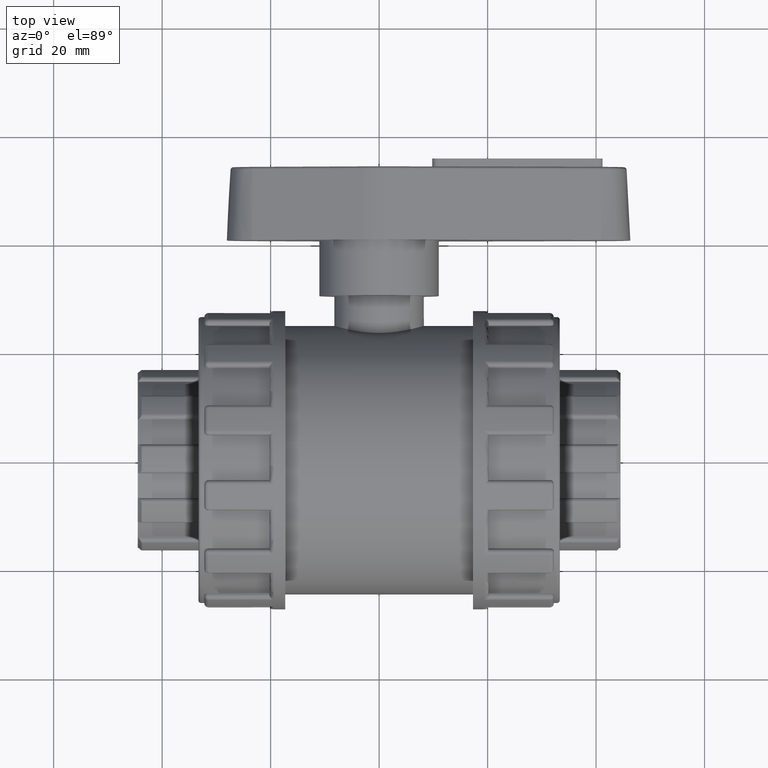
[diagram: clean part render]
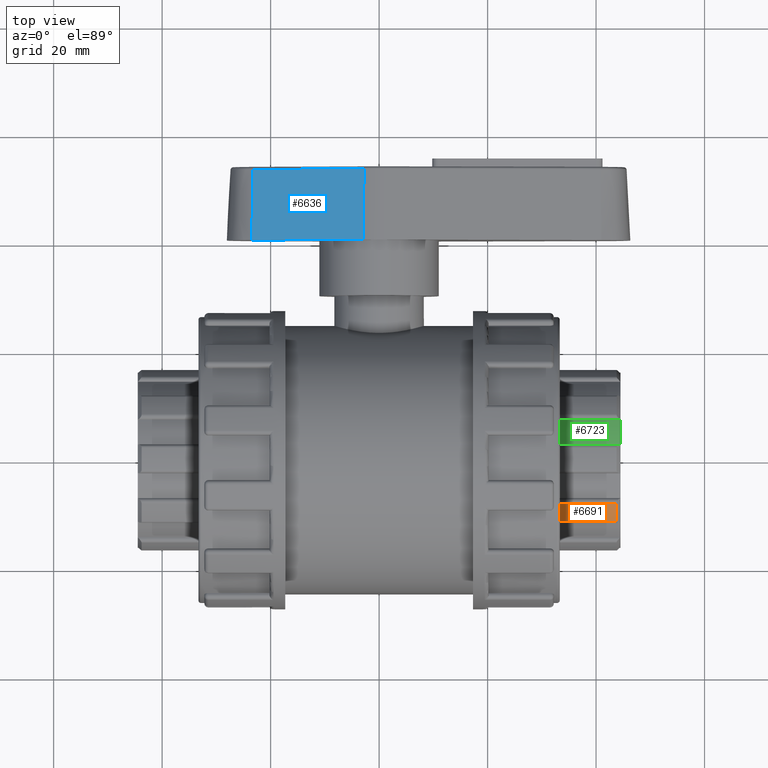
[diagram: same view with three faces highlighted in distinct colors, each labeled with its STEP entity id]
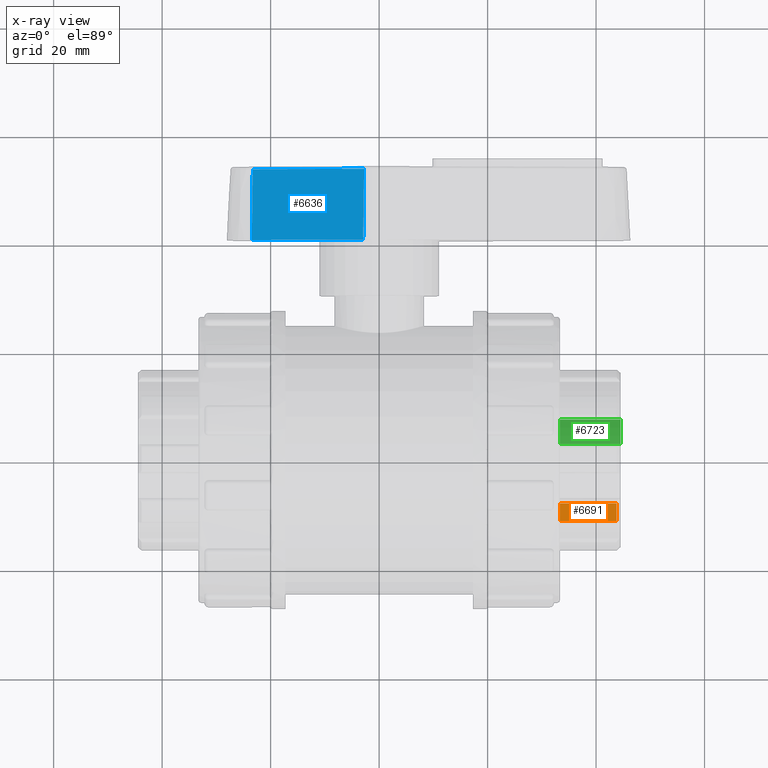
[diagram: x-ray of the same camera — body ghosted, the three highlighted faces saturated]
A machine part, top view with three faces highlighted in distinct colors.
The next image is the same camera in x-ray (body ghosted, the three faces saturated) — at least one of them is partly hidden behind the body in this view.
Their STEP definitions:

[orange] entity #6691 — the highlighted cylindrical surface (partial cylindrical patch) has radius 16.8819 mm, axis along (1, 0, 0).
#494=FACE_OUTER_BOUND('',#932,.T.);
#932=EDGE_LOOP('',(#4626,#4627,#4628,#4629));
#1388=LINE('',#10963,#1784);
#1398=LINE('',#11060,#1794);
#1784=VECTOR('',#8372,10.47649);
#1794=VECTOR('',#8420,10.47649);
#2196=CIRCLE('',#7218,16.8819);
#2197=CIRCLE('',#7219,16.8819);
#2756=VERTEX_POINT('',#10949);
#2757=VERTEX_POINT('',#10962);
#2776=VERTEX_POINT('',#11057);
#2777=VERTEX_POINT('',#11059);
#3447=EDGE_CURVE('',#2756,#2757,#1388,.T.);
#3472=EDGE_CURVE('',#2776,#2777,#1398,.T.);
#3475=EDGE_CURVE('',#2777,#2756,#2196,.T.);
#3476=EDGE_CURVE('',#2776,#2757,#2197,.T.);
#4626=ORIENTED_EDGE('',*,*,#3447,.F.);
#4627=ORIENTED_EDGE('',*,*,#3475,.F.);
#4628=ORIENTED_EDGE('',*,*,#3472,.F.);
#4629=ORIENTED_EDGE('',*,*,#3476,.T.);
#6473=CYLINDRICAL_SURFACE('',#7217,16.8819);
#6691=ADVANCED_FACE('',(#494),#6473,.T.);
#7217=AXIS2_PLACEMENT_3D('',#11075,#8422,#8423);
#7218=AXIS2_PLACEMENT_3D('',#11076,#8424,#8425);
#7219=AXIS2_PLACEMENT_3D('',#11077,#8426,#8427);
#8372=DIRECTION('',(-1.,0.,0.));
#8420=DIRECTION('',(1.,0.,0.));
#8422=DIRECTION('center_axis',(1.,0.,0.));
#8423=DIRECTION('ref_axis',(0.,1.,0.));
#8424=DIRECTION('center_axis',(1.,0.,0.));
#8425=DIRECTION('ref_axis',(0.,-1.,0.));
#8426=DIRECTION('center_axis',(1.,0.,0.));
#8427=DIRECTION('ref_axis',(0.,0.,-1.));
#10949=CARTESIAN_POINT('',(43.77649,-11.481199474637,12.3766152979558));
#10962=CARTESIAN_POINT('',(33.3,-11.481199474637,12.3766152979558));
#10963=CARTESIAN_POINT('',(44.5,-11.481199474637,12.3766152979558));
#11057=CARTESIAN_POINT('',(33.3,-8.22297487532761,14.7438540351474));
#11059=CARTESIAN_POINT('',(43.77649,-8.22297487532761,14.7438540351474));
#11060=CARTESIAN_POINT('',(44.5,-8.22297487532761,14.7438540351474));
#11075=CARTESIAN_POINT('Origin',(38.9,0.,0.));
#11076=CARTESIAN_POINT('Origin',(43.77649,0.,0.));
#11077=CARTESIAN_POINT('Origin',(33.3,0.,0.));

[blue] entity #6636 — the highlighted planar face has unit normal (-0.2508, 0.0523, 0.9666).
#233=PLANE('',#7097);
#439=FACE_OUTER_BOUND('',#875,.T.);
#875=EDGE_LOOP('',(#4410,#4411,#4412,#4413));
#1321=LINE('',#10355,#1717);
#1337=LINE('',#10407,#1733);
#1339=LINE('',#10414,#1735);
#1340=LINE('',#10415,#1736);
#1717=VECTOR('',#8057,21.1981131235778);
#1733=VECTOR('',#8115,21.1981131235778);
#1735=VECTOR('',#8123,13.0608031018627);
#1736=VECTOR('',#8124,13.0608031018627);
#2637=VERTEX_POINT('',#10345);
#2639=VERTEX_POINT('',#10351);
#2654=VERTEX_POINT('',#10404);
#2655=VERTEX_POINT('',#10406);
#3290=EDGE_CURVE('',#2637,#2639,#1321,.T.);
#3315=EDGE_CURVE('',#2655,#2654,#1337,.T.);
#3319=EDGE_CURVE('',#2637,#2655,#1339,.T.);
#3320=EDGE_CURVE('',#2639,#2654,#1340,.T.);
#4410=ORIENTED_EDGE('',*,*,#3290,.F.);
#4411=ORIENTED_EDGE('',*,*,#3319,.T.);
#4412=ORIENTED_EDGE('',*,*,#3315,.T.);
#4413=ORIENTED_EDGE('',*,*,#3320,.F.);
#6636=ADVANCED_FACE('',(#439),#233,.T.);
#7097=AXIS2_PLACEMENT_3D('',#10413,#8121,#8122);
#8057=DIRECTION('',(0.967950370939624,3.16736232403428E-16,0.251141552511416));
#8115=DIRECTION('',(0.967950370939624,3.16736232403428E-16,0.251141552511416));
#8121=DIRECTION('center_axis',(-0.250797371742016,0.0523359562429437,0.966623828596954));
#8122=DIRECTION('ref_axis',(-0.967950370939624,0.,-0.251141552511416));
#8123=DIRECTION('',(-0.0131437333030221,-0.998629534754574,0.0506586082588374));
#8124=DIRECTION('',(-0.0131437333030221,-0.998629534754574,0.0506586082588374));
#10345=CARTESIAN_POINT('',(-23.2872947353317,53.5429037251342,5.34691467914628));
#10351=CARTESIAN_POINT('',(-2.76857327414446,53.5429037251342,10.6706417193142));
#10355=CARTESIAN_POINT('',(-13.0279340047381,53.5429037251342,8.00877819923025));
#10404=CARTESIAN_POINT('',(-2.94024098683863,40.5,11.3322838271973));
#10406=CARTESIAN_POINT('',(-23.4589624480259,40.5,6.00855678702935));
#10407=CARTESIAN_POINT('',(-23.4589624480259,40.5,6.00855678702935));
#10413=CARTESIAN_POINT('Origin',(-23.2812785388128,54.,5.32372704016794));
#10414=CARTESIAN_POINT('',(-23.2812785388128,54.,5.32372704016794));
#10415=CARTESIAN_POINT('',(-2.76255707762558,54.,10.6474540803359));

[green] entity #6723 — the highlighted cylindrical surface (partial cylindrical patch) has radius 16.1584 mm, axis along (-1, 0, 0).
#526=FACE_OUTER_BOUND('',#964,.T.);
#964=EDGE_LOOP('',(#4754,#4755,#4756,#4757));
#1405=LINE('',#11142,#1801);
#1407=LINE('',#11162,#1803);
#1801=VECTOR('',#8455,11.2);
#1803=VECTOR('',#8461,11.2);
#2250=CIRCLE('',#7304,16.15839);
#2251=CIRCLE('',#7305,16.15839);
#2787=VERTEX_POINT('',#11124);
#2790=VERTEX_POINT('',#11140);
#2791=VERTEX_POINT('',#11144);
#2794=VERTEX_POINT('',#11149);
#3491=EDGE_CURVE('',#2787,#2790,#1405,.T.);
#3495=EDGE_CURVE('',#2794,#2791,#1407,.T.);
#3554=EDGE_CURVE('',#2794,#2787,#2250,.T.);
#3555=EDGE_CURVE('',#2790,#2791,#2251,.T.);
#4754=ORIENTED_EDGE('',*,*,#3554,.T.);
#4755=ORIENTED_EDGE('',*,*,#3491,.T.);
#4756=ORIENTED_EDGE('',*,*,#3555,.T.);
#4757=ORIENTED_EDGE('',*,*,#3495,.F.);
#6503=CYLINDRICAL_SURFACE('',#7303,16.15839);
#6723=ADVANCED_FACE('',(#526),#6503,.T.);
#7303=AXIS2_PLACEMENT_3D('',#11308,#8611,#8612);
#7304=AXIS2_PLACEMENT_3D('',#11309,#8613,#8614);
#7305=AXIS2_PLACEMENT_3D('',#11310,#8615,#8616);
#8455=DIRECTION('',(-1.,0.,0.));
#8461=DIRECTION('',(-1.,0.,0.));
#8611=DIRECTION('center_axis',(-1.,0.,0.));
#8612=DIRECTION('ref_axis',(0.,-0.951056516295153,0.309016994374947));
#8613=DIRECTION('center_axis',(-1.,0.,0.));
#8614=DIRECTION('ref_axis',(0.,-1.,0.));
#8615=DIRECTION('center_axis',(1.,0.,0.));
#8616=DIRECTION('ref_axis',(0.,-0.951056516295153,0.309016994374947));
#11124=CARTESIAN_POINT('',(44.5,7.23095073696366,14.4501528999421));
#11140=CARTESIAN_POINT('',(33.3,7.23095073696366,14.4501528999421));
#11142=CARTESIAN_POINT('',(44.5,7.23095073696366,14.4501528999421));
#11144=CARTESIAN_POINT('',(33.3,2.64362473626562,15.9406654706102));
#11149=CARTESIAN_POINT('',(44.5,2.64362473626562,15.9406654706102));
#11162=CARTESIAN_POINT('',(44.5,2.64362473626562,15.9406654706102));
#11308=CARTESIAN_POINT('Origin',(44.5,0.,0.));
#11309=CARTESIAN_POINT('Origin',(44.5,0.,0.));
#11310=CARTESIAN_POINT('Origin',(33.3,0.,0.));